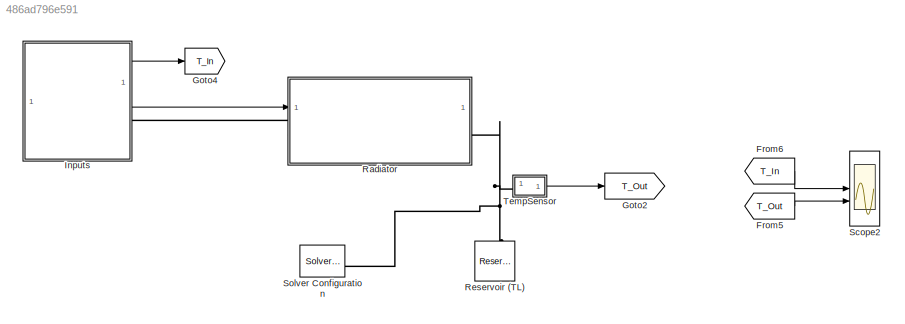
MODEL slx_486ad796e591
KIND model
CONFIG AbsTol = auto
CONFIG EnableMultiTasking = off
CONFIG FixedStep = auto
CONFIG MaxStep = auto
CONFIG MinStep = auto
CONFIG PreLoadFcn = RadiatorTestHarnessParams;
CONFIG RelTol = 1e-3
CONFIG SampleTimeConstraint = Unconstrained
CONFIG SolverName = VariableStepAuto
CONFIG StartTime = 0.0
CONFIG StopTime = 1200
BLOCK [From] From5
  GotoTag = T_Out
BLOCK [From] From6
  GotoTag = T_In
BLOCK [Goto] Goto2
  GotoTag = T_Out
BLOCK [Goto] Goto4
  GotoTag = T_In
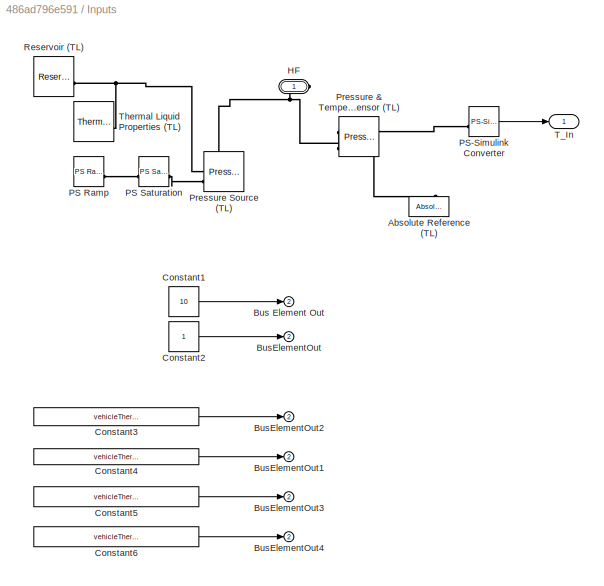
BLOCK [SubSystem] Inputs
BLOCK [Reference] Inputs/Absolute Reference (TL)  REF=fl_lib/Thermal Liquid/Elements/Absolute Reference
(TL)
  NameLocation = right
  SourceBlock = fl_lib/Thermal Liquid/Elements/Absolute Reference\n(TL)
  SourceType = Absolute Reference\n(TL)
BLOCK [Outport] Inputs/Bus Element Out
  Port = 2
  VectorParamsAs1DForOutWhenUnconnected = off
BLOCK [Outport] Inputs/BusElementOut
  Port = 2
BLOCK [Outport] Inputs/BusElementOut1
  Port = 2
BLOCK [Outport] Inputs/BusElementOut2
  Port = 2
BLOCK [Outport] Inputs/BusElementOut3
  Port = 2
BLOCK [Outport] Inputs/BusElementOut4
  Port = 2
BLOCK [Constant] Inputs/Constant1
  Value = 10
BLOCK [Constant] Inputs/Constant2
BLOCK [Constant] Inputs/Constant3
  Value = vehicleThermal.ambient
BLOCK [Constant] Inputs/Constant4
  Value = vehicleThermal.cabin_p_init
BLOCK [Constant] Inputs/Constant5
  Value = vehicleThermal.cabin_RH_init
BLOCK [Constant] Inputs/Constant6
  Value = vehicleThermal.cabin_CO2_init
BLOCK [PMIOPort] Inputs/HF
  Side = Right
BLOCK [Reference] Inputs/PS Ramp  REF=fl_lib/Physical Signals/Sources/PS Ramp
  SourceBlock = fl_lib/Physical Signals/Sources/PS Ramp
  SourceType = PS Ramp
BLOCK [Reference] Inputs/PS Saturation  REF=fl_lib/Physical Signals/Nonlinear Operators/PS Saturation
  SourceBlock = fl_lib/Physical Signals/Nonlinear Operators/PS Saturation
  SourceType = PS Saturation
BLOCK [Reference] Inputs/PS-Simulink Converter  REF=nesl_utility/PS-Simulink
Converter
  SourceBlock = nesl_utility/PS-Simulink\nConverter
  SourceType = PS-Simulink\nConverter
BLOCK [Reference] Inputs/Pressure & Temperature Sensor (TL)  REF=fl_lib/Thermal Liquid/Sensors/Pressure &
Temperature Sensor
(TL)
  SourceBlock = fl_lib/Thermal Liquid/Sensors/Pressure &\nTemperature Sensor\n(TL)
  SourceType = Pressure &\nTemperature Sensor\n(TL)
BLOCK [Reference] Inputs/Pressure Source (TL)  REF=fl_lib/Thermal Liquid/Sources/Pressure Source (TL)
  SourceBlock = fl_lib/Thermal Liquid/Sources/Pressure Source (TL)
  SourceType = Pressure Source (TL)
BLOCK [Reference] Inputs/Reservoir (TL)  REF=fl_lib/Thermal Liquid/Elements/Reservoir (TL)
  SourceBlock = fl_lib/Thermal Liquid/Elements/Reservoir (TL)
  SourceType = Reservoir (TL)
BLOCK [Outport] Inputs/T_In
BLOCK [Reference] Inputs/Thermal Liquid Properties (TL)  REF=SimscapeFluids_lib/Thermal Liquid/Utilities/Thermal Liquid
Properties (TL)
  SourceBlock = SimscapeFluids_lib/Thermal Liquid/Utilities/Thermal Liquid\nProperties (TL)
  SourceType = Thermal Liquid\nProperties (TL)
BLOCK [SubSystem] Radiator
  ReferencedSubsystem = Radiator
  VariantControl = Driveline == 1
BLOCK [Reference] Reservoir (TL)  REF=fl_lib/Thermal Liquid/Elements/Reservoir (TL)
  NameLocation = right
  SourceBlock = fl_lib/Thermal Liquid/Elements/Reservoir (TL)
  SourceType = Reservoir (TL)
BLOCK [Scope] Scope2
  Floating = off
  NumInputPorts = 2
  ScopeSpecificationString = Simulink.scopes.TimeScopeBlockCfg('CurrentConfiguration', extmgr.ConfigurationSet(extmgr.Configuration('Core','General UI',true),extmgr.Configuration('Core','Source UI',true),extmgr.Configuration('Sources','WiredSimulink',true),extmgr.Configuration('Visuals','Time Domain',true,'SerializedDisplays',{struct('MinYLimReal','298.11644','MaxYLimReal','298.50202','YLabelReal','','MinYLimMag','298.11644',...<+2073ch>
BLOCK [Reference] Solver Configuration  REF=nesl_utility/Solver
Configuration
  SourceBlock = nesl_utility/Solver\nConfiguration
  SourceType = Solver\nConfiguration
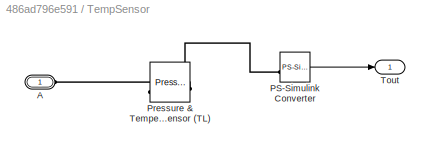
BLOCK [SubSystem] TempSensor
BLOCK [PMIOPort] TempSensor/A
  Side = Left
BLOCK [Reference] TempSensor/PS-Simulink Converter  REF=nesl_utility/PS-Simulink
Converter
  SourceBlock = nesl_utility/PS-Simulink\nConverter
  SourceType = PS-Simulink\nConverter
BLOCK [Reference] TempSensor/Pressure & Temperature Sensor (TL)  REF=fl_lib/Thermal Liquid/Sensors/Pressure &
Temperature Sensor
(TL)
  SourceBlock = fl_lib/Thermal Liquid/Sensors/Pressure &\nTemperature Sensor\n(TL)
  SourceType = Pressure &\nTemperature Sensor\n(TL)
BLOCK [Outport] TempSensor/Tout
LINE From5:1 -> Scope2:2
LINE From6:1 -> Scope2:1
LINE Inputs/Constant1:1 -> Inputs/Bus Element Out:1
LINE Inputs/Constant2:1 -> Inputs/BusElementOut:1
LINE Inputs/Constant3:1 -> Inputs/BusElementOut2:1
LINE Inputs/Constant4:1 -> Inputs/BusElementOut1:1
LINE Inputs/Constant5:1 -> Inputs/BusElementOut3:1
LINE Inputs/Constant6:1 -> Inputs/BusElementOut4:1
LINE Inputs/PS-Simulink Converter:1 -> Inputs/T_In:1
LINE Inputs:1 -> Goto4:1
LINE Inputs:2 -> Radiator:1
LINE TempSensor/PS-Simulink Converter:1 -> TempSensor/Tout:1
LINE TempSensor:1 -> Goto2:1
PLINE Inputs/Absolute Reference (TL):LConn1 -- Inputs/Pressure & Temperature Sensor (TL):RConn1
PNET net1: Inputs/HF:RConn1 -- Inputs/Pressure & Temperature Sensor (TL):LConn1 -- Inputs/Pressure Source (TL):RConn1
PLINE Inputs/PS Ramp:RConn1 -- Inputs/PS Saturation:LConn1
PLINE Inputs/PS Saturation:RConn1 -- Inputs/Pressure Source (TL):LConn2
PLINE Inputs/PS-Simulink Converter:LConn1 -- Inputs/Pressure & Temperature Sensor (TL):RConn3
PNET net2: Inputs/Pressure Source (TL):LConn1 -- Inputs/Reservoir (TL):LConn1 -- Inputs/Thermal Liquid Properties (TL):RConn1
PLINE Inputs:RConn1 -- Radiator:LConn1
PNET net3: Radiator:RConn1 -- Reservoir (TL):LConn1 -- Solver Configuration:RConn1 -- TempSensor:LConn1
PLINE TempSensor/A:RConn1 -- TempSensor/Pressure & Temperature Sensor (TL):LConn1
PLINE TempSensor/PS-Simulink Converter:LConn1 -- TempSensor/Pressure & Temperature Sensor (TL):RConn2
note: PNET lines group multi-terminal physical nets as a canonical sorted terminal list (undirected conserving connections); 2-terminal nets keep the pairwise PLINE form
